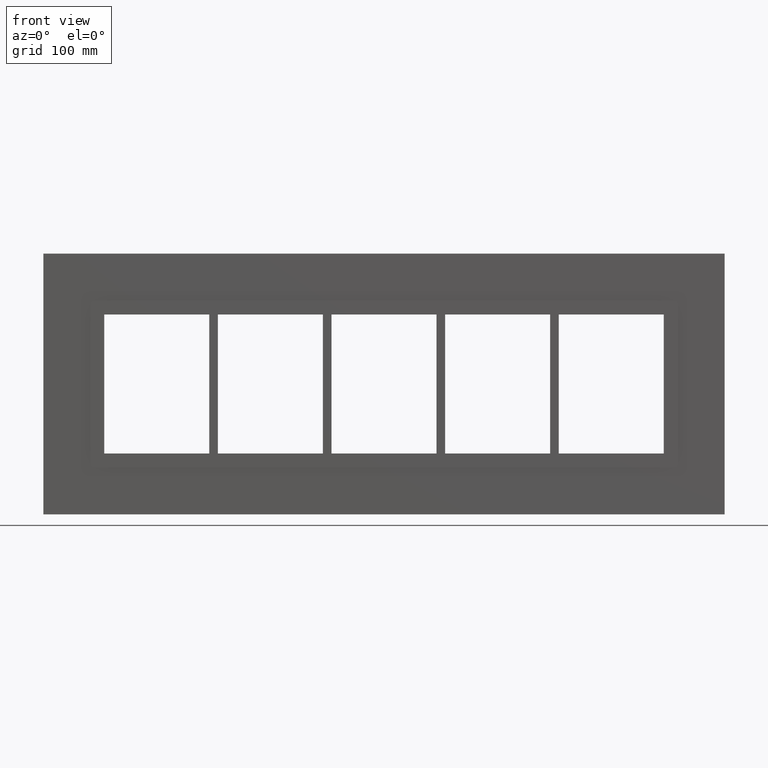
[diagram: clean part render]
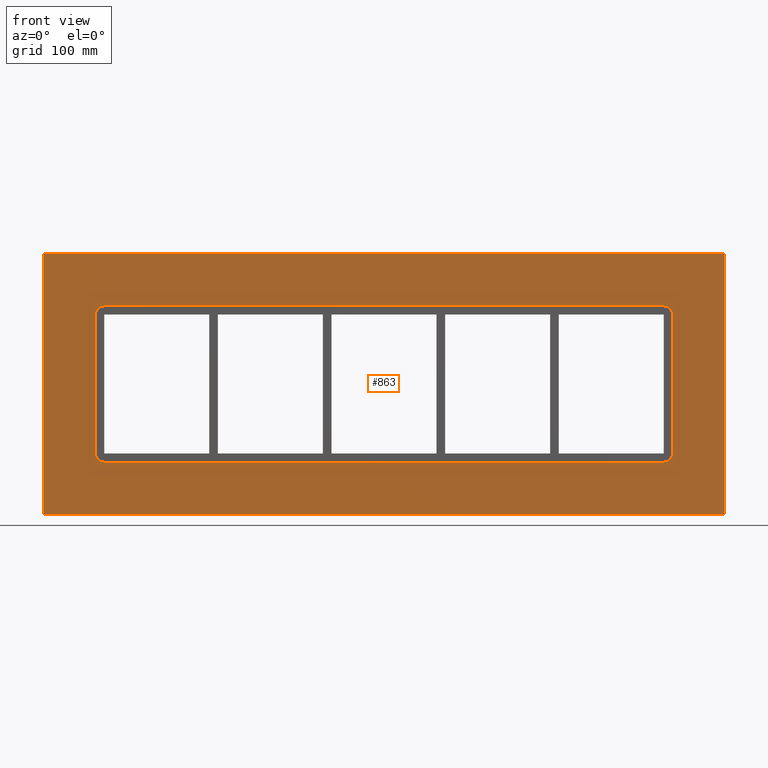
[diagram: same view with one face highlighted and labeled with its STEP entity id]
A machine part, front view. The second image highlights one B-rep face of the part: STEP entity #863.
In plain terms, the highlighted planar face has unit normal (0, 1, 0).
Its self-contained STEP definition (entity closure, byte-faithful):
#754=CARTESIAN_POINT('',(0.0,0.0,-2.609948E-014));
#755=DIRECTION('',(0.0,1.0,0.0));
#756=DIRECTION('',(0.0,0.0,1.0));
#757=AXIS2_PLACEMENT_3D('',#754,#755,#756);
#758=PLANE('',#757);
#759=CARTESIAN_POINT('',(-391.25,0.0,149.75));
#760=VERTEX_POINT('',#759);
#761=CARTESIAN_POINT('',(391.25,0.0,149.75));
#762=VERTEX_POINT('',#761);
#763=CARTESIAN_POINT('',(-391.25,0.0,149.75));
#764=DIRECTION('',(1.0,0.0,0.0));
#765=VECTOR('',#764,782.5);
#766=LINE('',#763,#765);
#767=EDGE_CURVE('',#760,#762,#766,.T.);
#768=ORIENTED_EDGE('',*,*,#767,.F.);
#769=CARTESIAN_POINT('',(-391.25,0.0,-149.75000000000006));
#770=VERTEX_POINT('',#769);
#771=CARTESIAN_POINT('',(-391.25,0.0,-149.75000000000006));
#772=DIRECTION('',(0.0,0.0,1.0));
#773=VECTOR('',#772,299.50000000000006);
#774=LINE('',#771,#773);
#775=EDGE_CURVE('',#770,#760,#774,.T.);
#776=ORIENTED_EDGE('',*,*,#775,.F.);
#777=CARTESIAN_POINT('',(391.25,0.0,-149.75000000000006));
#778=VERTEX_POINT('',#777);
#779=CARTESIAN_POINT('',(391.25,0.0,-149.75000000000006));
#780=DIRECTION('',(-1.0,0.0,0.0));
#781=VECTOR('',#780,782.5);
#782=LINE('',#779,#781);
#783=EDGE_CURVE('',#778,#770,#782,.T.);
#784=ORIENTED_EDGE('',*,*,#783,.F.);
#785=CARTESIAN_POINT('',(391.25,0.0,149.75));
#786=DIRECTION('',(0.0,0.0,-1.0));
#787=VECTOR('',#786,299.50000000000006);
#788=LINE('',#785,#787);
#789=EDGE_CURVE('',#762,#778,#788,.T.);
#790=ORIENTED_EDGE('',*,*,#789,.F.);
#791=EDGE_LOOP('',(#768,#776,#784,#790));
#792=FACE_OUTER_BOUND('',#791,.T.);
#793=CARTESIAN_POINT('',(-331.24999999999994,0.0,-79.750000000000014));
#794=VERTEX_POINT('',#793);
#795=CARTESIAN_POINT('',(-321.24999999999994,0.0,-89.750000000000014));
#796=VERTEX_POINT('',#795);
#797=CARTESIAN_POINT('',(-321.24999999999994,0.0,-79.750000000000014));
#798=DIRECTION('',(0.0,-1.0,0.0));
#799=DIRECTION('',(-0.707106781186547,0.0,-0.707106781186547));
#800=AXIS2_PLACEMENT_3D('',#797,#798,#799);
#801=CIRCLE('',#800,9.999999999999998);
#802=EDGE_CURVE('',#794,#796,#801,.T.);
#803=ORIENTED_EDGE('',*,*,#802,.F.);
#804=CARTESIAN_POINT('',(-331.24999999999994,0.0,79.750000000000014));
#805=VERTEX_POINT('',#804);
#806=CARTESIAN_POINT('',(-331.24999999999994,0.0,79.750000000000014));
#807=DIRECTION('',(0.0,0.0,-1.0));
#808=VECTOR('',#807,159.50000000000003);
#809=LINE('',#806,#808);
#810=EDGE_CURVE('',#805,#794,#809,.T.);
#811=ORIENTED_EDGE('',*,*,#810,.F.);
#812=CARTESIAN_POINT('',(-321.24999999999994,0.0,89.750000000000014));
#813=VERTEX_POINT('',#812);
#814=CARTESIAN_POINT('',(-321.24999999999994,0.0,79.750000000000014));
#815=DIRECTION('',(0.0,-1.0,0.0));
#816=DIRECTION('',(-0.707106781186547,0.0,0.707106781186547));
#817=AXIS2_PLACEMENT_3D('',#814,#815,#816);
#818=CIRCLE('',#817,9.999999999999998);
#819=EDGE_CURVE('',#813,#805,#818,.T.);
#820=ORIENTED_EDGE('',*,*,#819,.F.);
#821=CARTESIAN_POINT('',(321.25000000000006,0.0,89.750000000000014));
#822=VERTEX_POINT('',#821);
#823=CARTESIAN_POINT('',(321.25,0.0,89.750000000000014));
#824=DIRECTION('',(-1.0,0.0,0.0));
#825=VECTOR('',#824,642.5);
#826=LINE('',#823,#825);
#827=EDGE_CURVE('',#822,#813,#826,.T.);
#828=ORIENTED_EDGE('',*,*,#827,.F.);
#829=CARTESIAN_POINT('',(331.25000000000006,0.0,79.750000000000014));
#830=VERTEX_POINT('',#829);
#831=CARTESIAN_POINT('',(321.25000000000006,0.0,79.750000000000014));
#832=DIRECTION('',(0.0,-1.0,0.0));
#833=DIRECTION('',(0.707106781186547,0.0,0.707106781186547));
#834=AXIS2_PLACEMENT_3D('',#831,#832,#833);
#835=CIRCLE('',#834,9.999999999999998);
#836=EDGE_CURVE('',#830,#822,#835,.T.);
#837=ORIENTED_EDGE('',*,*,#836,.F.);
#838=CARTESIAN_POINT('',(331.25000000000006,0.0,-79.750000000000014));
#839=VERTEX_POINT('',#838);
#840=CARTESIAN_POINT('',(331.25000000000006,0.0,-79.750000000000028));
#841=DIRECTION('',(0.0,0.0,1.0));
#842=VECTOR('',#841,159.50000000000006);
#843=LINE('',#840,#842);
#844=EDGE_CURVE('',#839,#830,#843,.T.);
#845=ORIENTED_EDGE('',*,*,#844,.F.);
#846=CARTESIAN_POINT('',(321.25000000000006,0.0,-89.750000000000014));
#847=VERTEX_POINT('',#846);
#848=CARTESIAN_POINT('',(321.25000000000006,0.0,-79.750000000000014));
#849=DIRECTION('',(0.0,-1.0,0.0));
#850=DIRECTION('',(0.707106781186547,0.0,-0.707106781186547));
#851=AXIS2_PLACEMENT_3D('',#848,#849,#850);
#852=CIRCLE('',#851,9.999999999999998);
#853=EDGE_CURVE('',#847,#839,#852,.T.);
#854=ORIENTED_EDGE('',*,*,#853,.F.);
#855=CARTESIAN_POINT('',(-321.25,0.0,-89.750000000000014));
#856=DIRECTION('',(1.0,0.0,0.0));
#857=VECTOR('',#856,642.5);
#858=LINE('',#855,#857);
#859=EDGE_CURVE('',#796,#847,#858,.T.);
#860=ORIENTED_EDGE('',*,*,#859,.F.);
#861=EDGE_LOOP('',(#803,#811,#820,#828,#837,#845,#854,#860));
#862=FACE_BOUND('',#861,.T.);
#863=ADVANCED_FACE('',(#792,#862),#758,.F.);